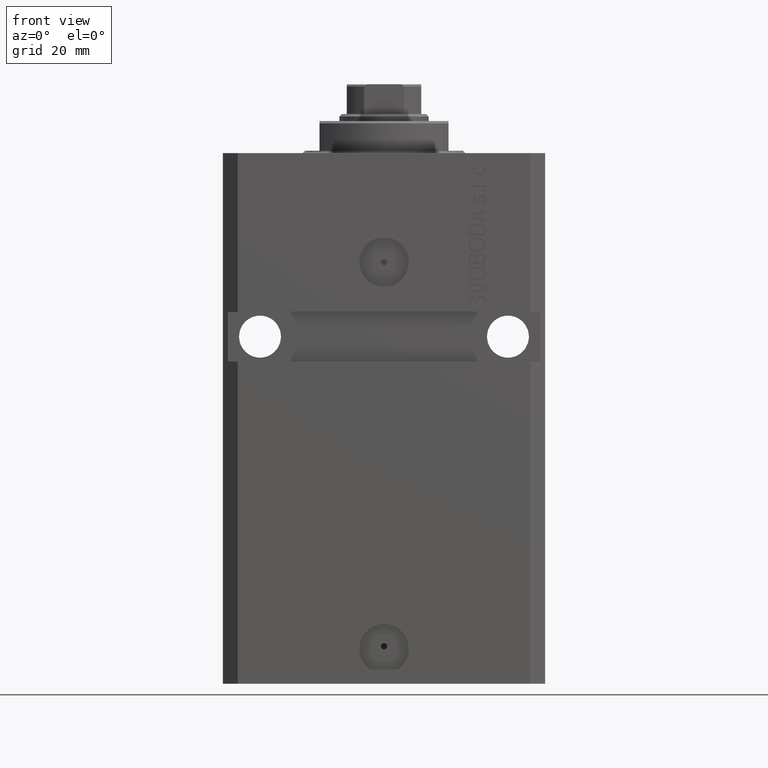
[diagram: clean part render]
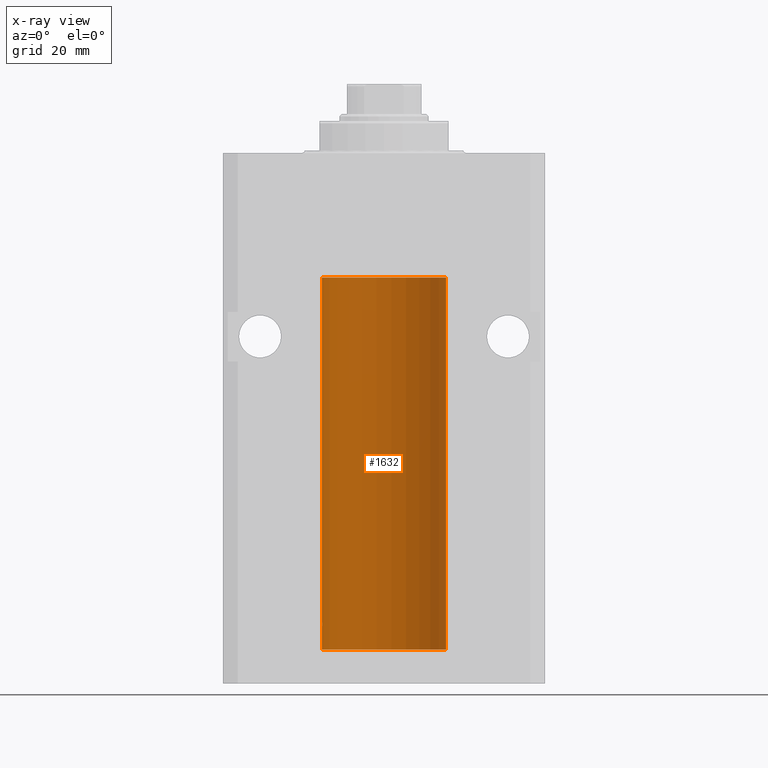
[diagram: x-ray — body ghosted, one internal face saturated and labeled with its STEP entity id]
A machine part, front view, then the same camera in x-ray: the body is ghosted and one INTERNAL B-rep face — a face not visible from any outside direction — is saturated and labeled: STEP entity #1632.
In plain terms, the highlighted cylindrical surface (partial cylindrical patch) has radius 12.5 mm, axis along (0, 0, 1).
Its self-contained STEP definition (entity closure, byte-faithful):
#226 = CARTESIAN_POINT ( 'NONE',  ( -12.48436376893640620, 0.6250290278979871994, -95.08132082824478459 ) ) ;
#930 = CARTESIAN_POINT ( 'NONE',  ( -12.50000000000017941, 3.883381774819353300E-13, -95.62500000000359535 ) ) ;
#1280 = VERTEX_POINT ( 'NONE', #17986 ) ;
#1632 = ADVANCED_FACE ( 'NONE', ( #29331 ), #25737, .F. ) ;
#2368 = VECTOR ( 'NONE', #36413, 1000.000000000000000 ) ;
#2629 = CARTESIAN_POINT ( 'NONE',  ( -12.50000000000017941, 3.883381774819353300E-13, -95.62500000000359535 ) ) ;
#3012 = CARTESIAN_POINT ( 'NONE',  ( 0.000000000000000000, 0.000000000000000000, -100.0999999999999943 ) ) ;
#4237 = CARTESIAN_POINT ( 'NONE',  ( -12.50000000000000000, 1.530808498934191521E-15, -100.0999999999999943 ) ) ;
#4282 = CARTESIAN_POINT ( 'NONE',  ( -12.49915784441387068, 0.1636601911727894876, -94.39126818989429069 ) ) ;
#7393 = CARTESIAN_POINT ( 'NONE',  ( -12.48809959379011403, 0.5462151254764922026, -95.31461370481613926 ) ) ;
#7871 = CARTESIAN_POINT ( 'NONE',  ( -12.48436813453758631, 0.6249418250771134886, -94.83668996798924411 ) ) ;
#8970 = ORIENTED_EDGE ( 'NONE', *, *, #35642, .T. ) ;
#9839 = ORIENTED_EDGE ( 'NONE', *, *, #28313, .T. ) ;
#11213 = CARTESIAN_POINT ( 'NONE',  ( -12.49625855304194033, 0.3150454781037993479, -94.45402800297488000 ) ) ;
#11452 = CARTESIAN_POINT ( 'NONE',  ( -12.49631005746706514, 0.3253680783018457756, -95.55856740465388555 ) ) ;
#11681 = CARTESIAN_POINT ( 'NONE',  ( -12.48520330846397997, 0.6088355886774070580, -95.16325431852561678 ) ) ;
#12394 = DIRECTION ( 'NONE',  ( 0.000000000000000000, 0.000000000000000000, 1.000000000000000000 ) ) ;
#13023 = AXIS2_PLACEMENT_3D ( 'NONE', #25504, #14781, #36969 ) ;
#13099 = DIRECTION ( 'NONE',  ( 1.000000000000000000, 0.000000000000000000, 0.000000000000000000 ) ) ;
#13387 = CIRCLE ( 'NONE', #33962, 12.50000000000000000 ) ;
#13497 = VERTEX_POINT ( 'NONE', #44895 ) ;
#14549 = CARTESIAN_POINT ( 'NONE',  ( -12.48810268015257741, 0.5573155909661239304, -94.67347410093871929 ) ) ;
#14670 = CARTESIAN_POINT ( 'NONE',  ( 12.50000000000000000, 0.000000000000000000, -100.0999999999999943 ) ) ;
#14781 = DIRECTION ( 'NONE',  ( -0.000000000000000000, -0.000000000000000000, 1.000000000000000000 ) ) ;
#15574 = AXIS2_PLACEMENT_3D ( 'NONE', #45768, #12394, #13099 ) ;
#16496 = CARTESIAN_POINT ( 'NONE',  ( 12.50000000000000000, 0.000000000000000000, -100.0999999999999943 ) ) ;
#16531 = EDGE_CURVE ( 'NONE', #13497, #39800, #33536, .T. ) ;
#17986 = CARTESIAN_POINT ( 'NONE',  ( -12.50000000000000000, 1.530808498934191521E-15, -25.10000000000000142 ) ) ;
#18683 = ORIENTED_EDGE ( 'NONE', *, *, #16531, .F. ) ;
#18821 = CARTESIAN_POINT ( 'NONE',  ( -12.49999999999999112, 0.1631761135151224562, -95.62499999999980105 ) ) ;
#19095 = CARTESIAN_POINT ( 'NONE',  ( -12.50000000000000000, -1.522152011595579853E-14, -94.37500000000000000 ) ) ;
#19432 = VERTEX_POINT ( 'NONE', #16496 ) ;
#19500 = LINE ( 'NONE', #4237, #43207 ) ;
#22199 = ORIENTED_EDGE ( 'NONE', *, *, #24866, .T. ) ;
#22327 = CARTESIAN_POINT ( 'NONE',  ( -12.50000000000000000, 1.530808498934191521E-15, -100.0999999999999943 ) ) ;
#22414 = CIRCLE ( 'NONE', #15574, 12.50000000000000000 ) ;
#22837 = DIRECTION ( 'NONE',  ( -0.000000000000000000, -0.000000000000000000, 1.000000000000000000 ) ) ;
#24495 = DIRECTION ( 'NONE',  ( 1.000000000000000000, 0.000000000000000000, 0.000000000000000000 ) ) ;
#24866 = EDGE_CURVE ( 'NONE', #46619, #1280, #22414, .T. ) ;
#25504 = CARTESIAN_POINT ( 'NONE',  ( 0.000000000000000000, 0.000000000000000000, -100.0999999999999943 ) ) ;
#25737 = CYLINDRICAL_SURFACE ( 'NONE', #13023, 12.50000000000000000 ) ;
#25738 = CARTESIAN_POINT ( 'NONE',  ( -12.49422197749723829, 0.3843754434364257122, -94.50047099568094211 ) ) ;
#28313 = EDGE_CURVE ( 'NONE', #37300, #39800, #41465, .T. ) ;
#29236 = ORIENTED_EDGE ( 'NONE', *, *, #36561, .F. ) ;
#29331 = FACE_OUTER_BOUND ( 'NONE', #35262, .T. ) ;
#31023 = EDGE_CURVE ( 'NONE', #19432, #13497, #13387, .T. ) ;
#33536 = LINE ( 'NONE', #22327, #2368 ) ;
#33962 = AXIS2_PLACEMENT_3D ( 'NONE', #3012, #35015, #24495 ) ;
#35015 = DIRECTION ( 'NONE',  ( 0.000000000000000000, 0.000000000000000000, 1.000000000000000000 ) ) ;
#35262 = EDGE_LOOP ( 'NONE', ( #18683, #43301, #8970, #22199, #29236, #9839 ) ) ;
#35642 = EDGE_CURVE ( 'NONE', #19432, #46619, #39731, .T. ) ;
#36413 = DIRECTION ( 'NONE',  ( -0.000000000000000000, -0.000000000000000000, 1.000000000000000000 ) ) ;
#36561 = EDGE_CURVE ( 'NONE', #37300, #1280, #19500, .T. ) ;
#36969 = DIRECTION ( 'NONE',  ( 1.000000000000000000, 0.000000000000000000, 0.000000000000000000 ) ) ;
#37300 = VERTEX_POINT ( 'NONE', #19095 ) ;
#39731 = LINE ( 'NONE', #14670, #46964 ) ;
#39800 = VERTEX_POINT ( 'NONE', #2629 ) ;
#40079 = CARTESIAN_POINT ( 'NONE',  ( -12.50000000000000000, -1.522152011595579853E-14, -94.37500000000000000 ) ) ;
#41465 = B_SPLINE_CURVE_WITH_KNOTS ( 'NONE', 3,
 ( #40079, #47212, #4282, #11213, #25738, #14549, #7871, #226, #11681, #7393, #44357, #11452, #18821, #930 ),
 .UNSPECIFIED., .F., .F.,
 ( 4, 2, 2, 2, 2, 2, 4 ),
 ( 3.486178718436696769E-18, 0.0002442924852390829216, 0.0004885849704781623738, 0.0009771699409563507684, 0.001221462426195465403, 0.001465754911434580254, 0.001954339881912780900 ),
 .UNSPECIFIED. ) ;
#43207 = VECTOR ( 'NONE', #22837, 1000.000000000000000 ) ;
#43301 = ORIENTED_EDGE ( 'NONE', *, *, #31023, .F. ) ;
#43548 = DIRECTION ( 'NONE',  ( -0.000000000000000000, -0.000000000000000000, 1.000000000000000000 ) ) ;
#44357 = CARTESIAN_POINT ( 'NONE',  ( -12.49011732893843529, 0.5003763274120199833, -95.38348111289285214 ) ) ;
#44895 = CARTESIAN_POINT ( 'NONE',  ( -12.50000000000000000, 1.530808498934191521E-15, -100.0999999999999943 ) ) ;
#45768 = CARTESIAN_POINT ( 'NONE',  ( 0.000000000000000000, 0.000000000000000000, -25.10000000000000142 ) ) ;
#45966 = CARTESIAN_POINT ( 'NONE',  ( 12.50000000000000000, 0.000000000000000000, -25.10000000000000142 ) ) ;
#46619 = VERTEX_POINT ( 'NONE', #45966 ) ;
#46964 = VECTOR ( 'NONE', #43548, 1000.000000000000000 ) ;
#47212 = CARTESIAN_POINT ( 'NONE',  ( -12.50000000000000000, 0.08260426088727994276, -94.37499999999998579 ) ) ;